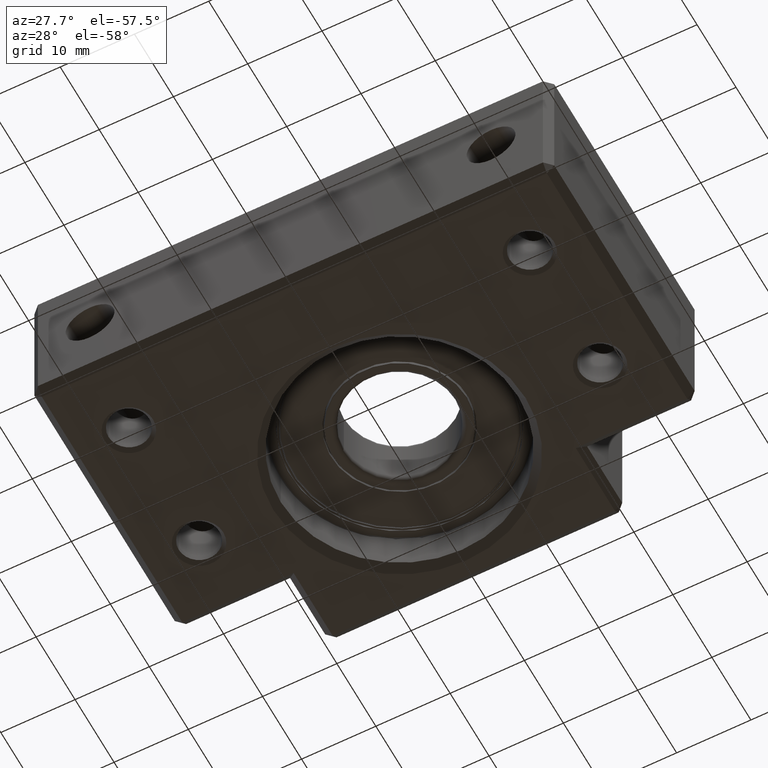
[diagram: clean part render]
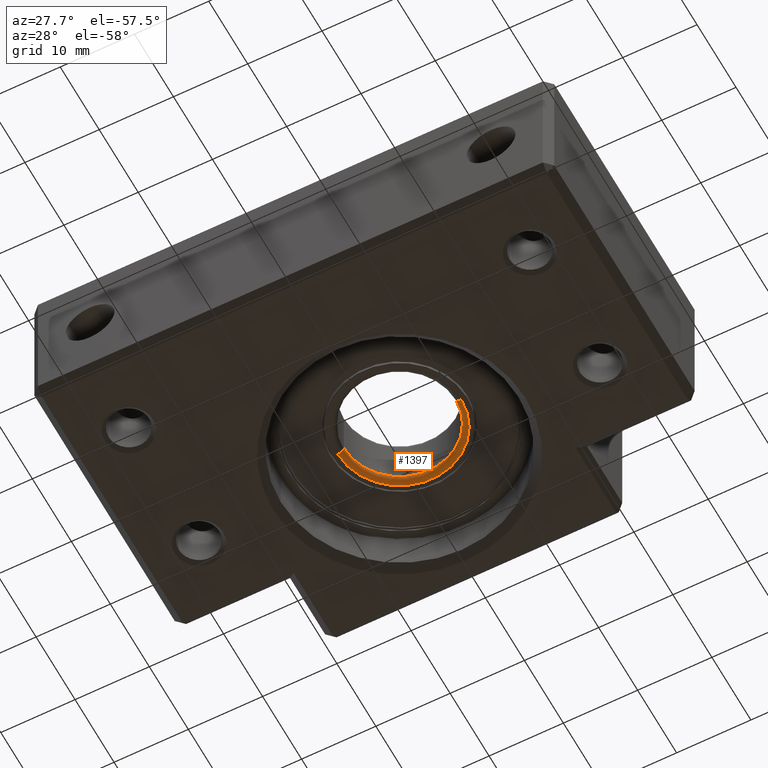
[diagram: same view with one face highlighted and labeled with its STEP entity id]
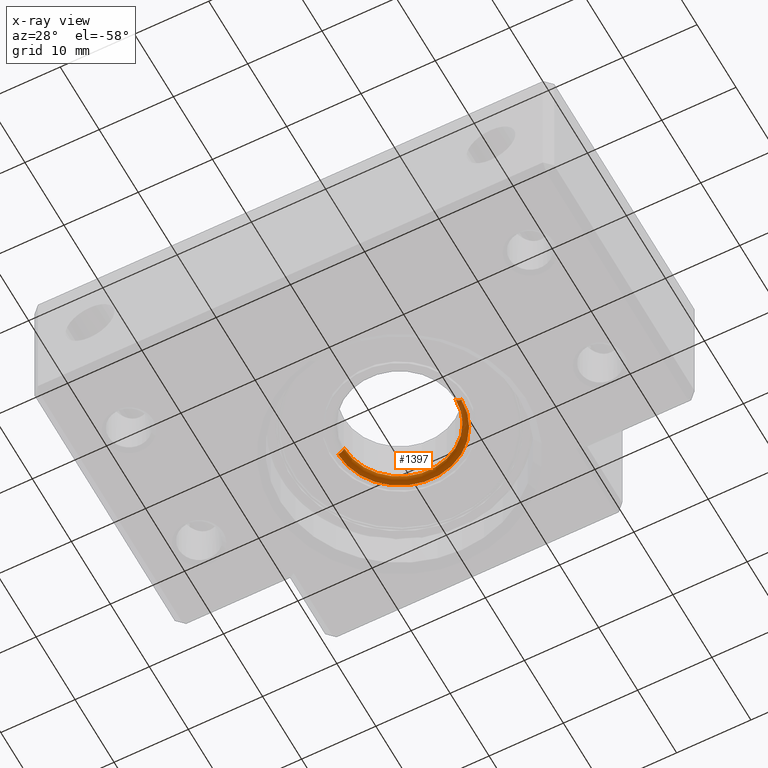
[diagram: x-ray of the same camera — body ghosted, the highlighted face saturated]
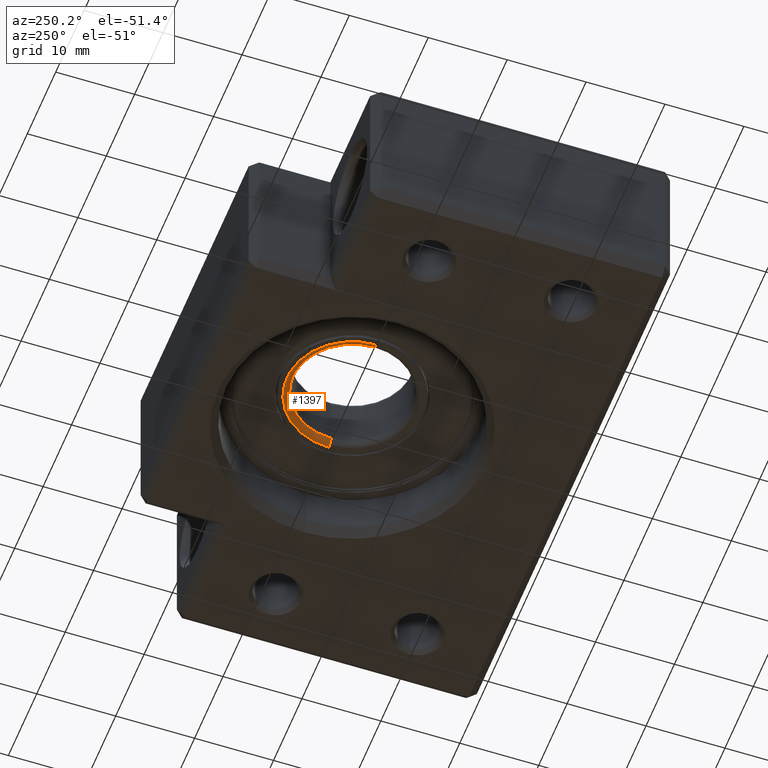
[diagram: same view with one face highlighted and labeled with its STEP entity id]
A machine part, auxiliary view. The second image highlights one B-rep face of the part: STEP entity #1397.
The next image is the same camera in x-ray: the body ghosted, the highlighted face saturated — about 0% of this face is hidden behind the body in this view.
A second angle (auxiliary view) of the same face is appended — the face is thin or edge-on in the first view.
In plain terms, the highlighted toroidal blend (fillet) surface has major radius 8.3 mm and minor (blend) radius 0.8 mm.
Its self-contained STEP definition (entity closure, byte-faithful):
#891 = EDGE_LOOP ( 'NONE', ( #2337, #2054, #1772, #1818 ) ) ;
#1397 = ADVANCED_FACE ( 'NONE', ( #4677 ), #4676, .T. ) ;
#1772 = ORIENTED_EDGE ( 'NONE', *, *, #1782, .F. ) ;
#1776 = VERTEX_POINT ( 'NONE', #5351 ) ;
#1782 = EDGE_CURVE ( 'NONE', #1776, #2226, #5349, .T. ) ;
#1818 = ORIENTED_EDGE ( 'NONE', *, *, #2018, .F. ) ;
#2018 = EDGE_CURVE ( 'NONE', #2139, #1776, #5830, .T. ) ;
#2054 = ORIENTED_EDGE ( 'NONE', *, *, #2171, .T. ) ;
#2139 = VERTEX_POINT ( 'NONE', #5825 ) ;
#2171 = EDGE_CURVE ( 'NONE', #2195, #2226, #5824, .T. ) ;
#2195 = VERTEX_POINT ( 'NONE', #5819 ) ;
#2226 = VERTEX_POINT ( 'NONE', #5818 ) ;
#2337 = ORIENTED_EDGE ( 'NONE', *, *, #2531, .F. ) ;
#2531 = EDGE_CURVE ( 'NONE', #2195, #2139, #5816, .T. ) ;
#4676 = TOROIDAL_SURFACE ( 'NONE', #4736, 8.300000000000000700, 0.8000000000000000400 ) ;
#4677 = FACE_OUTER_BOUND ( 'NONE', #891, .T. ) ;
#4733 = DIRECTION ( 'NONE',  ( 1.000000000000000000, 0.0000000000000000000, 0.0000000000000000000 ) ) ;
#4734 = DIRECTION ( 'NONE',  ( -0.0000000000000000000, -0.0000000000000000000, 1.000000000000000000 ) ) ;
#4735 = CARTESIAN_POINT ( 'NONE',  ( 1.369502252791130900E-014, 27.99999999999999600, -3.199999999999986000 ) ) ;
#4736 = AXIS2_PLACEMENT_3D ( 'NONE', #4735, #4734, #4733 ) ;
#5345 = DIRECTION ( 'NONE',  ( 1.000000000000000000, 0.0000000000000000000, 0.0000000000000000000 ) ) ;
#5346 = DIRECTION ( 'NONE',  ( -0.0000000000000000000, -0.0000000000000000000, 1.000000000000000000 ) ) ;
#5347 = CARTESIAN_POINT ( 'NONE',  ( 1.369502252791130900E-014, 27.99999999999999600, -3.999999999999986200 ) ) ;
#5348 = AXIS2_PLACEMENT_3D ( 'NONE', #5347, #5346, #5345 ) ;
#5349 = CIRCLE ( 'NONE', #5348, 8.300000000000000700 ) ;
#5351 = CARTESIAN_POINT ( 'NONE',  ( 8.300000000000013100, 27.99999999999999600, -3.999999999999986200 ) ) ;
#5812 = DIRECTION ( 'NONE',  ( 1.000000000000000000, 0.0000000000000000000, 0.0000000000000000000 ) ) ;
#5813 = DIRECTION ( 'NONE',  ( 0.0000000000000000000, 0.0000000000000000000, -1.000000000000000000 ) ) ;
#5814 = CARTESIAN_POINT ( 'NONE',  ( 1.369502252791130900E-014, 27.99999999999999600, -3.199999999999986000 ) ) ;
#5815 = AXIS2_PLACEMENT_3D ( 'NONE', #5814, #5813, #5812 ) ;
#5816 = CIRCLE ( 'NONE', #5815, 7.500000000000000000 ) ;
#5818 = CARTESIAN_POINT ( 'NONE',  ( -8.299999999999986500, 27.99999999999999600, -3.999999999999986200 ) ) ;
#5819 = CARTESIAN_POINT ( 'NONE',  ( -7.499999999999985800, 27.99999999999999600, -3.199999999999986000 ) ) ;
#5820 = DIRECTION ( 'NONE',  ( -1.000000000000000000, 0.0000000000000000000, 0.0000000000000000000 ) ) ;
#5821 = DIRECTION ( 'NONE',  ( 1.224606353822377300E-016, 1.000000000000000000, 0.0000000000000000000 ) ) ;
#5822 = CARTESIAN_POINT ( 'NONE',  ( -8.299999999999986500, 27.99999999999999600, -3.199999999999986000 ) ) ;
#5823 = AXIS2_PLACEMENT_3D ( 'NONE', #5822, #5821, #5820 ) ;
#5824 = CIRCLE ( 'NONE', #5823, 0.8000000000000003800 ) ;
#5825 = CARTESIAN_POINT ( 'NONE',  ( 7.500000000000013300, 27.99999999999999600, -3.199999999999986000 ) ) ;
#5826 = DIRECTION ( 'NONE',  ( 0.0000000000000000000, 0.0000000000000000000, -1.000000000000000000 ) ) ;
#5827 = DIRECTION ( 'NONE',  ( 0.0000000000000000000, -1.000000000000000000, 0.0000000000000000000 ) ) ;
#5828 = CARTESIAN_POINT ( 'NONE',  ( 8.300000000000013100, 27.99999999999999600, -3.199999999999986000 ) ) ;
#5829 = AXIS2_PLACEMENT_3D ( 'NONE', #5828, #5827, #5826 ) ;
#5830 = CIRCLE ( 'NONE', #5829, 0.8000000000000003800 ) ;